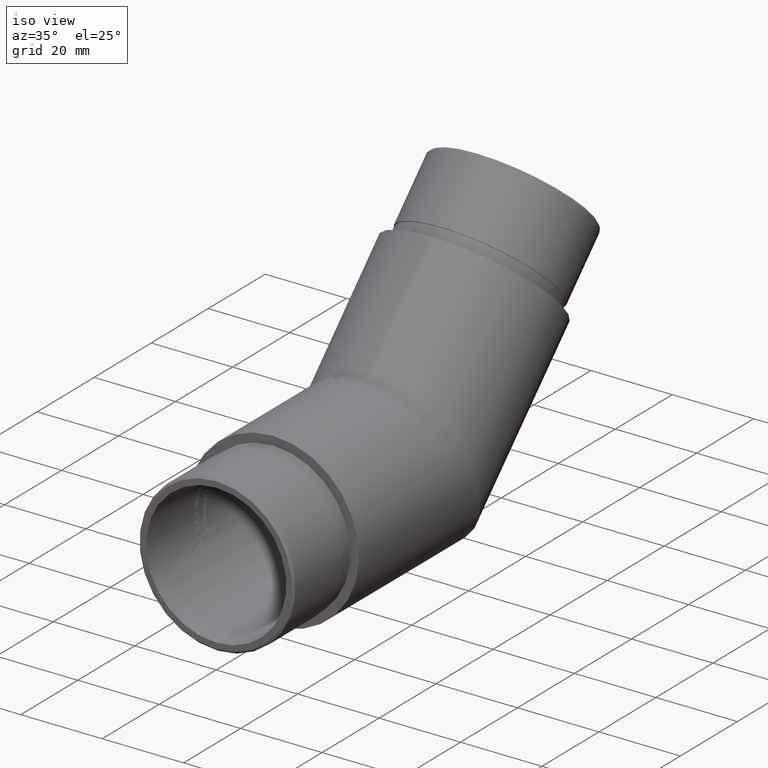
[diagram: clean part render]
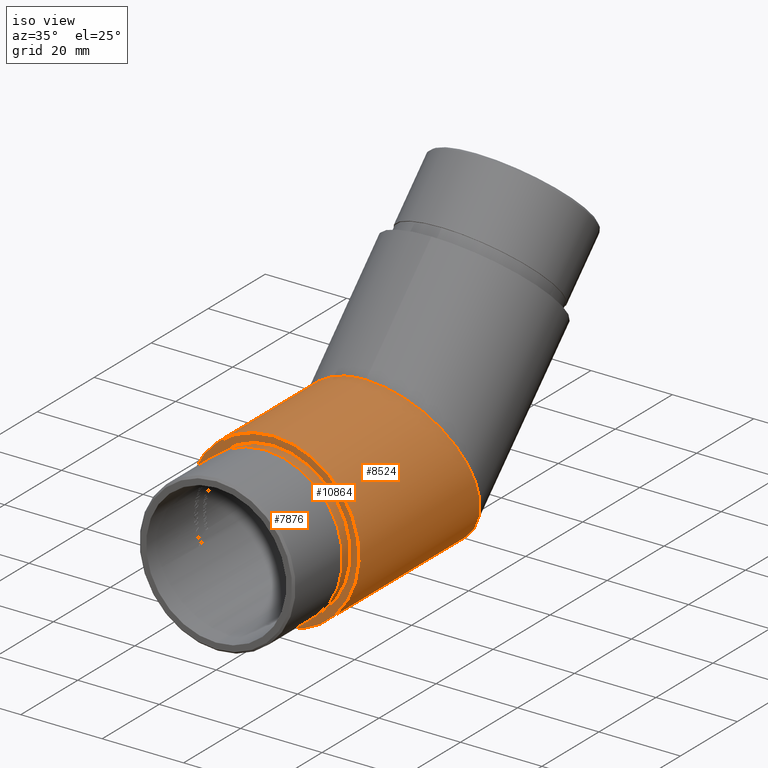
[diagram: same view with one multi-face feature highlighted, each face labeled with its STEP entity id]
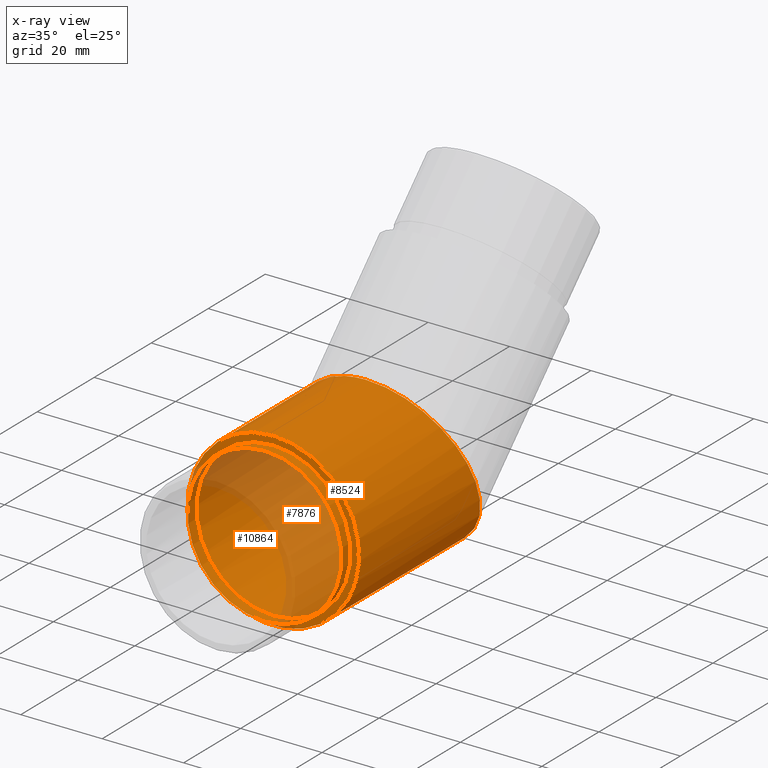
[diagram: x-ray of the same camera — body ghosted, the whole feature saturated]
A machine part, iso view. The highlighted faces form ONE feature: a stepped (counterbored) hole: 2 coaxial cylindrical walls of radii 18.95 -> 21.1 mm joined by 1 annular planar shoulder face(s). The faces share edges in the B-rep.
The next image is the same camera in x-ray: the body ghosted and the whole hole feature saturated, so the bore chain is visible through the body.
Their STEP definitions:
[1] entity #8524 (Cylinder):
#620 = EDGE_CURVE ( 'NONE', #6939, #6939, #5932, .T. ) ;
#793 = CARTESIAN_POINT ( 'NONE',  ( 0.0000000000000000000, 32.52018766785536000, 21.09999999999999800 ) ) ;
#886 = CARTESIAN_POINT ( 'NONE',  ( 0.0000000000000000000, 32.52018766785536000, 21.09999999999999800 ) ) ;
#1846 = CARTESIAN_POINT ( 'NONE',  ( 0.0000000000000000000, 32.52018766785536000, 21.09999999999999800 ) ) ;
#1952 = AXIS2_PLACEMENT_3D ( 'NONE', #2154, #9299, #9338 ) ;
#2154 = CARTESIAN_POINT ( 'NONE',  ( 0.0000000000000000000, 100.9399061660722900, 0.0000000000000000000 ) ) ;
#2604 = CARTESIAN_POINT ( 'NONE',  ( 0.0000000000000000000, 0.0000000000000000000, 0.0000000000000000000 ) ) ;
#2885 = FACE_OUTER_BOUND ( 'NONE', #7319, .T. ) ;
#3602 = DIRECTION ( 'NONE',  ( 0.0000000000000000000, 0.0000000000000000000, 1.000000000000000000 ) ) ;
#3831 = CYLINDRICAL_SURFACE ( 'NONE', #1952, 21.09999999999999800 ) ;
#4791 = CARTESIAN_POINT ( 'NONE',  ( 42.19999999999999600, 50.00000000000002100, -21.09999999999999400 ) ) ;
#5092 = ORIENTED_EDGE ( 'NONE', *, *, #620, .T. ) ;
#5738 = ORIENTED_EDGE ( 'NONE', *, *, #9562, .F. ) ;
#5828 = CARTESIAN_POINT ( 'NONE',  ( -42.19999999999999600, 32.52018766785536000, 21.09999999999999800 ) ) ;
#5932 = CIRCLE ( 'NONE', #12250, 21.09999999999999800 ) ;
#6872 = EDGE_LOOP ( 'NONE', ( #5092 ) ) ;
#6939 = VERTEX_POINT ( 'NONE', #12175 ) ;
#7319 = EDGE_LOOP ( 'NONE', ( #5738 ) ) ;
#8524 = ADVANCED_FACE ( 'NONE', ( #9268, #2885 ), #3831, .T. ) ;
#8983 = CARTESIAN_POINT ( 'NONE',  ( 42.19999999999999600, 32.52018766785536000, 21.09999999999999800 ) ) ;
#9027 = VERTEX_POINT ( 'NONE', #886 ) ;
#9268 = FACE_OUTER_BOUND ( 'NONE', #6872, .T. ) ;
#9299 = DIRECTION ( 'NONE',  ( -0.0000000000000000000, -1.000000000000000000, -0.0000000000000000000 ) ) ;
#9338 = DIRECTION ( 'NONE',  ( 0.0000000000000000000, 0.0000000000000000000, -1.000000000000000000 ) ) ;
#9562 = EDGE_CURVE ( 'NONE', #9027, #9027, #13236, .T. ) ;
#9867 = DIRECTION ( 'NONE',  ( 0.0000000000000000000, 1.000000000000000000, 0.0000000000000000000 ) ) ;
#9924 = CARTESIAN_POINT ( 'NONE',  ( 2.584004746200915400E-015, 50.00000000000001400, -21.09999999999999800 ) ) ;
#11937 = CARTESIAN_POINT ( 'NONE',  ( -42.19999999999999600, 50.00000000000002100, -21.10000000000000100 ) ) ;
#12175 = CARTESIAN_POINT ( 'NONE',  ( 0.0000000000000000000, 0.0000000000000000000, 21.09999999999999800 ) ) ;
#12250 = AXIS2_PLACEMENT_3D ( 'NONE', #2604, #9867, #3602 ) ;
#13236 =( BOUNDED_CURVE ( )  B_SPLINE_CURVE ( 3, ( #1846, #8983, #4791, #9924, #11937, #5828, #793 ),
 .UNSPECIFIED., .T., .T. ) 
 B_SPLINE_CURVE_WITH_KNOTS ( ( 4, 3, 4 ),
 ( 0.0000000000000000000, 3.141592653589793100, 6.283185307179586200 ),
 .UNSPECIFIED. ) 
 CURVE ( )  GEOMETRIC_REPRESENTATION_ITEM ( )  RATIONAL_B_SPLINE_CURVE ( ( 1.000000000000000000, 0.3333333333333333700, 0.3333333333333333700, 1.000000000000000000, 0.3333333333333333700, 0.3333333333333333700, 1.000000000000000000 ) ) 
 REPRESENTATION_ITEM ( '' )  );
[2] entity #10864 (Cylinder):
#350 = VERTEX_POINT ( 'NONE', #9260 ) ;
#906 = DIRECTION ( 'NONE',  ( 0.0000000000000000000, -1.000000000000000000, 0.0000000000000000000 ) ) ;
#1384 = AXIS2_PLACEMENT_3D ( 'NONE', #6044, #906, #12225 ) ;
#1871 = CARTESIAN_POINT ( 'NONE',  ( 0.0000000000000000000, 0.0000000000000000000, 0.0000000000000000000 ) ) ;
#2139 = EDGE_CURVE ( 'NONE', #7542, #7542, #7928, .T. ) ;
#2311 = AXIS2_PLACEMENT_3D ( 'NONE', #13064, #5866, #12064 ) ;
#2782 = AXIS2_PLACEMENT_3D ( 'NONE', #1871, #8864, #13096 ) ;
#3163 = FACE_OUTER_BOUND ( 'NONE', #8392, .T. ) ;
#3996 = CARTESIAN_POINT ( 'NONE',  ( 0.0000000000000000000, -3.000000000000000000, -18.95000000000001000 ) ) ;
#5059 = ORIENTED_EDGE ( 'NONE', *, *, #6537, .T. ) ;
#5866 = DIRECTION ( 'NONE',  ( -0.0000000000000000000, 1.000000000000000000, -0.0000000000000000000 ) ) ;
#6044 = CARTESIAN_POINT ( 'NONE',  ( 0.0000000000000000000, -3.000000000000000000, 0.0000000000000000000 ) ) ;
#6537 = EDGE_CURVE ( 'NONE', #350, #350, #9492, .T. ) ;
#7542 = VERTEX_POINT ( 'NONE', #3996 ) ;
#7928 = CIRCLE ( 'NONE', #1384, 18.95000000000001000 ) ;
#8080 = FACE_OUTER_BOUND ( 'NONE', #10853, .T. ) ;
#8250 = CYLINDRICAL_SURFACE ( 'NONE', #2311, 18.95000000000001000 ) ;
#8392 = EDGE_LOOP ( 'NONE', ( #5059 ) ) ;
#8864 = DIRECTION ( 'NONE',  ( -0.0000000000000000000, -1.000000000000000000, -0.0000000000000000000 ) ) ;
#9260 = CARTESIAN_POINT ( 'NONE',  ( 0.0000000000000000000, 0.0000000000000000000, 18.95000000000001000 ) ) ;
#9492 = CIRCLE ( 'NONE', #2782, 18.95000000000001000 ) ;
#10853 = EDGE_LOOP ( 'NONE', ( #11166 ) ) ;
#10864 = ADVANCED_FACE ( 'NONE', ( #8080, #3163 ), #8250, .T. ) ;
#11166 = ORIENTED_EDGE ( 'NONE', *, *, #2139, .F. ) ;
#12064 = DIRECTION ( 'NONE',  ( 0.0000000000000000000, 0.0000000000000000000, 1.000000000000000000 ) ) ;
#12225 = DIRECTION ( 'NONE',  ( 0.0000000000000000000, 0.0000000000000000000, -1.000000000000000000 ) ) ;
#13064 = CARTESIAN_POINT ( 'NONE',  ( 0.0000000000000000000, -3.000000000000000000, 0.0000000000000000000 ) ) ;
#13096 = DIRECTION ( 'NONE',  ( 0.0000000000000000000, 0.0000000000000000000, 1.000000000000000000 ) ) ;
[3] entity #7876 (Plane):
#350 = VERTEX_POINT ( 'NONE', #9260 ) ;
#620 = EDGE_CURVE ( 'NONE', #6939, #6939, #5932, .T. ) ;
#1059 = ORIENTED_EDGE ( 'NONE', *, *, #6537, .F. ) ;
#1871 = CARTESIAN_POINT ( 'NONE',  ( 0.0000000000000000000, 0.0000000000000000000, 0.0000000000000000000 ) ) ;
#2604 = CARTESIAN_POINT ( 'NONE',  ( 0.0000000000000000000, 0.0000000000000000000, 0.0000000000000000000 ) ) ;
#2782 = AXIS2_PLACEMENT_3D ( 'NONE', #1871, #8864, #13096 ) ;
#3602 = DIRECTION ( 'NONE',  ( 0.0000000000000000000, 0.0000000000000000000, 1.000000000000000000 ) ) ;
#5297 = PLANE ( 'NONE',  #10910 ) ;
#5932 = CIRCLE ( 'NONE', #12250, 21.09999999999999800 ) ;
#6537 = EDGE_CURVE ( 'NONE', #350, #350, #9492, .T. ) ;
#6854 = EDGE_LOOP ( 'NONE', ( #11673 ) ) ;
#6939 = VERTEX_POINT ( 'NONE', #12175 ) ;
#7630 = FACE_OUTER_BOUND ( 'NONE', #6854, .T. ) ;
#7876 = ADVANCED_FACE ( 'NONE', ( #7630, #9430 ), #5297, .F. ) ;
#8309 = DIRECTION ( 'NONE',  ( 0.0000000000000000000, 1.000000000000000000, 0.0000000000000000000 ) ) ;
#8864 = DIRECTION ( 'NONE',  ( -0.0000000000000000000, -1.000000000000000000, -0.0000000000000000000 ) ) ;
#9260 = CARTESIAN_POINT ( 'NONE',  ( 0.0000000000000000000, 0.0000000000000000000, 18.95000000000001000 ) ) ;
#9430 = FACE_BOUND ( 'NONE', #11603, .T. ) ;
#9492 = CIRCLE ( 'NONE', #2782, 18.95000000000001000 ) ;
#9867 = DIRECTION ( 'NONE',  ( 0.0000000000000000000, 1.000000000000000000, 0.0000000000000000000 ) ) ;
#10388 = DIRECTION ( 'NONE',  ( 0.0000000000000000000, -0.0000000000000000000, 1.000000000000000000 ) ) ;
#10910 = AXIS2_PLACEMENT_3D ( 'NONE', #13315, #8309, #10388 ) ;
#11603 = EDGE_LOOP ( 'NONE', ( #1059 ) ) ;
#11673 = ORIENTED_EDGE ( 'NONE', *, *, #620, .F. ) ;
#12175 = CARTESIAN_POINT ( 'NONE',  ( 0.0000000000000000000, 0.0000000000000000000, 21.09999999999999800 ) ) ;
#12250 = AXIS2_PLACEMENT_3D ( 'NONE', #2604, #9867, #3602 ) ;
#13096 = DIRECTION ( 'NONE',  ( 0.0000000000000000000, 0.0000000000000000000, 1.000000000000000000 ) ) ;
#13315 = CARTESIAN_POINT ( 'NONE',  ( 0.0000000000000000000, 0.0000000000000000000, 0.0000000000000000000 ) ) ;